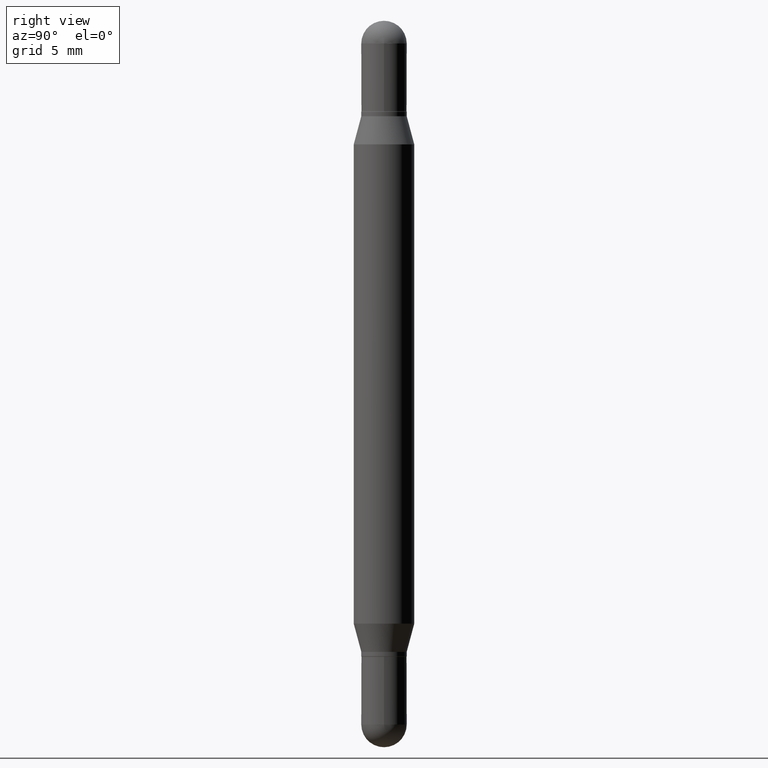
[diagram: clean part render]
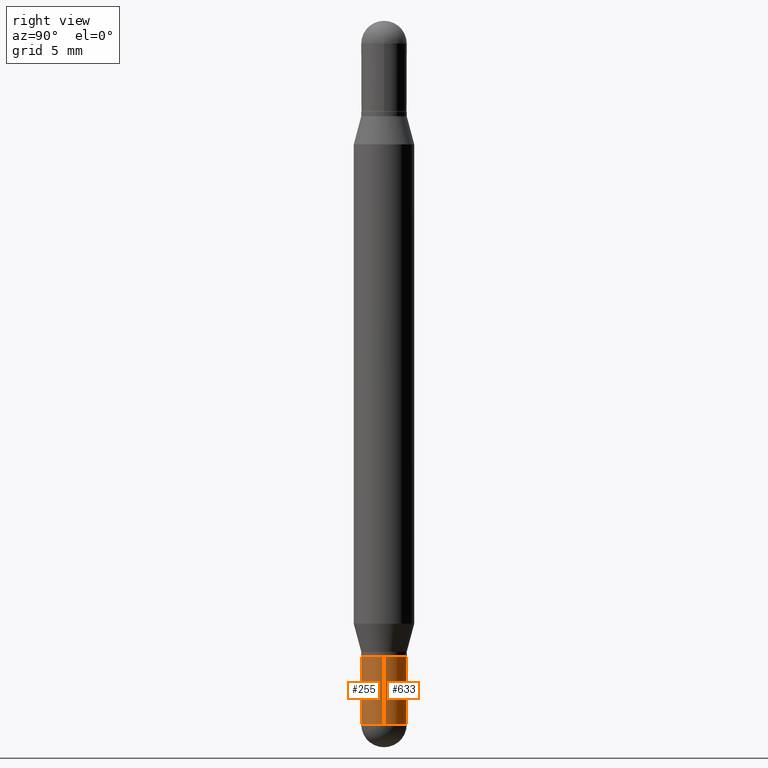
[diagram: same view with one multi-face feature highlighted, each face labeled with its STEP entity id]
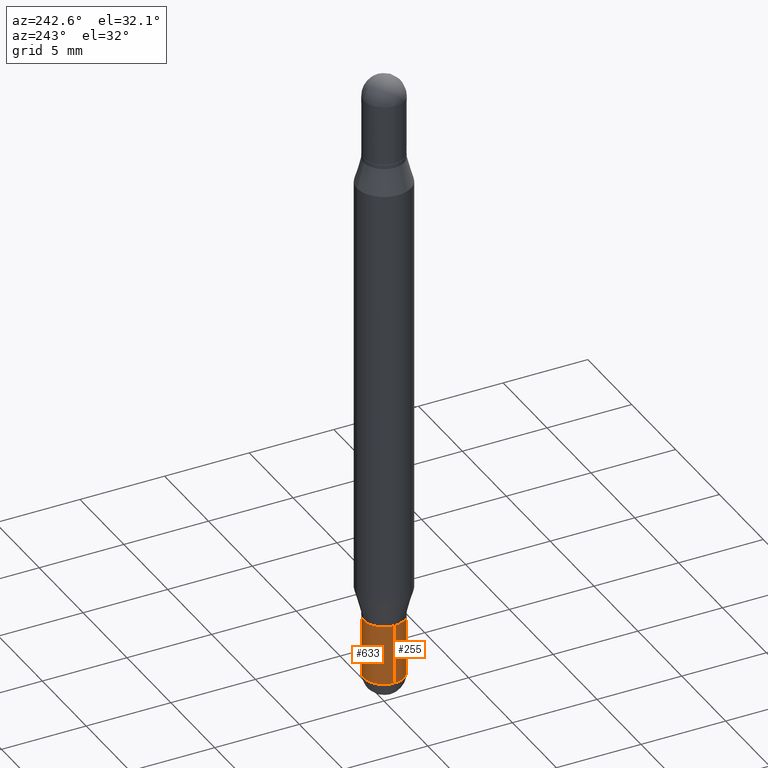
[diagram: same view with one multi-face feature highlighted, each face labeled with its STEP entity id]
A machine part, right view. The highlighted faces form ONE feature: a constant-radius fillet chain: 2 tangent blend faces with common blend radius 1.1913 mm. The faces share edges in the B-rep.
A second angle (auxiliary view) of the same feature is appended — it is thin or edge-on in the first view.
Their STEP definitions:
[1] entity #633 (Cylinder):
#17 = VECTOR ( 'NONE', #774, 39.37007874015748143 ) ;
#86 = CARTESIAN_POINT ( 'NONE',  ( 0.04689999999999999725, -3.275009495834859024E-16, 2.286926907848294038E-30 ) ) ;
#87 = AXIS2_PLACEMENT_3D ( 'NONE', #154, #1088, #316 ) ;
#93 = CARTESIAN_POINT ( 'NONE',  ( -0.04689999999999999725, 3.332445430714869676E-16, -2.306980557329550952E-30 ) ) ;
#123 = AXIS2_PLACEMENT_3D ( 'NONE', #1025, #613, #441 ) ;
#135 = ORIENTED_EDGE ( 'NONE', *, *, #504, .T. ) ;
#146 = EDGE_CURVE ( 'NONE', #756, #773, #436, .T. ) ;
#154 = CARTESIAN_POINT ( 'NONE',  ( 3.553510722267622201E-29, -5.073471533472974042E-15, -1.453099999999999836 ) ) ;
#176 = CARTESIAN_POINT ( 'NONE',  ( 0.000000000000000000, 0.000000000000000000, 0.000000000000000000 ) ) ;
#192 = EDGE_LOOP ( 'NONE', ( #621, #423, #250, #309, #135 ) ) ;
#237 = DIRECTION ( 'NONE',  ( -2.445468806185136597E-29, 3.491481338843145583E-15, 1.000000000000000000 ) ) ;
#250 = ORIENTED_EDGE ( 'NONE', *, *, #919, .F. ) ;
#285 = CIRCLE ( 'NONE', #1115, 0.04689999999999999725 ) ;
#305 = CARTESIAN_POINT ( 'NONE',  ( -0.04689999999999999725, -4.495648722615525747E-15, -1.313000000000000167 ) ) ;
#309 = ORIENTED_EDGE ( 'NONE', *, *, #708, .F. ) ;
#316 = DIRECTION ( 'NONE',  ( 1.000000000000000000, -6.982962677686277755E-15, 0.000000000000000000 ) ) ;
#354 = DIRECTION ( 'NONE',  ( -2.445468806185136877E-29, 3.491481338843145188E-15, 1.000000000000000000 ) ) ;
#396 = CIRCLE ( 'NONE', #123, 0.04689999999999999725 ) ;
#407 = CARTESIAN_POINT ( 'NONE',  ( 0.04689999999999999725, -5.156394215270499012E-15, -1.453099999999999836 ) ) ;
#423 = ORIENTED_EDGE ( 'NONE', *, *, #146, .T. ) ;
#436 = LINE ( 'NONE', #93, #17 ) ;
#441 = DIRECTION ( 'NONE',  ( 1.000000000000000000, -6.982962677686277755E-15, 0.000000000000000000 ) ) ;
#451 = CYLINDRICAL_SURFACE ( 'NONE', #764, 0.04689999999999999725 ) ;
#504 = EDGE_CURVE ( 'NONE', #957, #1100, #692, .T. ) ;
#613 = DIRECTION ( 'NONE',  ( -2.445468806185136597E-29, 3.491481338843145583E-15, 1.000000000000000000 ) ) ;
#619 = DIRECTION ( 'NONE',  ( -2.445468806185136597E-29, 3.491481338843145583E-15, 1.000000000000000000 ) ) ;
#621 = ORIENTED_EDGE ( 'NONE', *, *, #1108, .T. ) ;
#633 = ADVANCED_FACE ( 'NONE', ( #958 ), #451, .T. ) ;
#692 = CIRCLE ( 'NONE', #87, 0.04689999999999999725 ) ;
#708 = EDGE_CURVE ( 'NONE', #957, #1008, #853, .T. ) ;
#729 = VECTOR ( 'NONE', #354, 39.37007874015748143 ) ;
#750 = CARTESIAN_POINT ( 'NONE',  ( 3.210900542521084585E-29, -4.584314997901050598E-15, -1.313000000000000167 ) ) ;
#756 = VERTEX_POINT ( 'NONE', #892 ) ;
#764 = AXIS2_PLACEMENT_3D ( 'NONE', #176, #619, #1027 ) ;
#773 = VERTEX_POINT ( 'NONE', #305 ) ;
#774 = DIRECTION ( 'NONE',  ( -2.445468806185136877E-29, 3.491481338843145188E-15, 1.000000000000000000 ) ) ;
#853 = LINE ( 'NONE', #86, #729 ) ;
#892 = CARTESIAN_POINT ( 'NONE',  ( -0.04689999999999999725, -4.495648722615525747E-15, -1.453099999999999836 ) ) ;
#908 = DIRECTION ( 'NONE',  ( 1.000000000000000000, -6.982962677686277755E-15, 0.000000000000000000 ) ) ;
#919 = EDGE_CURVE ( 'NONE', #1008, #773, #285, .T. ) ;
#944 = CARTESIAN_POINT ( 'NONE',  ( 3.332445430715229101E-16, 0.04689999999999499430, -1.453100000000000058 ) ) ;
#957 = VERTEX_POINT ( 'NONE', #407 ) ;
#958 = FACE_OUTER_BOUND ( 'NONE', #192, .T. ) ;
#1008 = VERTEX_POINT ( 'NONE', #1015 ) ;
#1015 = CARTESIAN_POINT ( 'NONE',  ( 0.04689999999999999725, -4.911815947484537290E-15, -1.313000000000000167 ) ) ;
#1025 = CARTESIAN_POINT ( 'NONE',  ( 3.553510722267622201E-29, -5.073471533472974042E-15, -1.453099999999999836 ) ) ;
#1027 = DIRECTION ( 'NONE',  ( 1.000000000000000000, -6.982962677686266711E-15, 4.876176775795936353E-29 ) ) ;
#1088 = DIRECTION ( 'NONE',  ( -2.445468806185136597E-29, 3.491481338843145583E-15, 1.000000000000000000 ) ) ;
#1100 = VERTEX_POINT ( 'NONE', #944 ) ;
#1108 = EDGE_CURVE ( 'NONE', #1100, #756, #396, .T. ) ;
#1115 = AXIS2_PLACEMENT_3D ( 'NONE', #750, #237, #908 ) ;
[2] entity #255 (Cylinder):
#17 = VECTOR ( 'NONE', #774, 39.37007874015748143 ) ;
#36 = CARTESIAN_POINT ( 'NONE',  ( -3.275009495834508474E-16, -0.04690000000000513897, -1.453099999999999614 ) ) ;
#46 = ORIENTED_EDGE ( 'NONE', *, *, #89, .T. ) ;
#71 = CIRCLE ( 'NONE', #304, 0.04689999999999999725 ) ;
#86 = CARTESIAN_POINT ( 'NONE',  ( 0.04689999999999999725, -3.275009495834859024E-16, 2.286926907848294038E-30 ) ) ;
#89 = EDGE_CURVE ( 'NONE', #756, #852, #247, .T. ) ;
#93 = CARTESIAN_POINT ( 'NONE',  ( -0.04689999999999999725, 3.332445430714869676E-16, -2.306980557329550952E-30 ) ) ;
#111 = EDGE_LOOP ( 'NONE', ( #353, #46, #684, #315, #238 ) ) ;
#146 = EDGE_CURVE ( 'NONE', #756, #773, #436, .T. ) ;
#165 = DIRECTION ( 'NONE',  ( -2.445468806185136597E-29, 3.491481338843145583E-15, 1.000000000000000000 ) ) ;
#184 = DIRECTION ( 'NONE',  ( -2.445468806185136597E-29, 3.491481338843145583E-15, 1.000000000000000000 ) ) ;
#202 = DIRECTION ( 'NONE',  ( -2.445468806185136597E-29, 3.491481338843145583E-15, 1.000000000000000000 ) ) ;
#238 = ORIENTED_EDGE ( 'NONE', *, *, #1021, .F. ) ;
#247 = CIRCLE ( 'NONE', #550, 0.04689999999999999725 ) ;
#255 = ADVANCED_FACE ( 'NONE', ( #681 ), #523, .T. ) ;
#304 = AXIS2_PLACEMENT_3D ( 'NONE', #663, #1086, #1110 ) ;
#305 = CARTESIAN_POINT ( 'NONE',  ( -0.04689999999999999725, -4.495648722615525747E-15, -1.313000000000000167 ) ) ;
#315 = ORIENTED_EDGE ( 'NONE', *, *, #708, .T. ) ;
#353 = ORIENTED_EDGE ( 'NONE', *, *, #146, .F. ) ;
#354 = DIRECTION ( 'NONE',  ( -2.445468806185136877E-29, 3.491481338843145188E-15, 1.000000000000000000 ) ) ;
#360 = AXIS2_PLACEMENT_3D ( 'NONE', #996, #165, #506 ) ;
#407 = CARTESIAN_POINT ( 'NONE',  ( 0.04689999999999999725, -5.156394215270499012E-15, -1.453099999999999836 ) ) ;
#436 = LINE ( 'NONE', #93, #17 ) ;
#458 = CARTESIAN_POINT ( 'NONE',  ( 3.553510722267622201E-29, -5.073471533472974042E-15, -1.453099999999999836 ) ) ;
#488 = DIRECTION ( 'NONE',  ( 1.000000000000000000, -6.982962677686277755E-15, 0.000000000000000000 ) ) ;
#506 = DIRECTION ( 'NONE',  ( 1.000000000000000000, -6.982962677686277755E-15, 0.000000000000000000 ) ) ;
#523 = CYLINDRICAL_SURFACE ( 'NONE', #1033, 0.04689999999999999725 ) ;
#550 = AXIS2_PLACEMENT_3D ( 'NONE', #458, #202, #488 ) ;
#586 = CIRCLE ( 'NONE', #360, 0.04689999999999999725 ) ;
#663 = CARTESIAN_POINT ( 'NONE',  ( 3.553510722267622201E-29, -5.073471533472974042E-15, -1.453099999999999836 ) ) ;
#681 = FACE_OUTER_BOUND ( 'NONE', #111, .T. ) ;
#684 = ORIENTED_EDGE ( 'NONE', *, *, #1032, .T. ) ;
#708 = EDGE_CURVE ( 'NONE', #957, #1008, #853, .T. ) ;
#729 = VECTOR ( 'NONE', #354, 39.37007874015748143 ) ;
#756 = VERTEX_POINT ( 'NONE', #892 ) ;
#773 = VERTEX_POINT ( 'NONE', #305 ) ;
#774 = DIRECTION ( 'NONE',  ( -2.445468806185136877E-29, 3.491481338843145188E-15, 1.000000000000000000 ) ) ;
#852 = VERTEX_POINT ( 'NONE', #36 ) ;
#853 = LINE ( 'NONE', #86, #729 ) ;
#867 = DIRECTION ( 'NONE',  ( 1.000000000000000000, -6.982962677686266711E-15, 4.876176775795936353E-29 ) ) ;
#892 = CARTESIAN_POINT ( 'NONE',  ( -0.04689999999999999725, -4.495648722615525747E-15, -1.453099999999999836 ) ) ;
#954 = CARTESIAN_POINT ( 'NONE',  ( 0.000000000000000000, 0.000000000000000000, 0.000000000000000000 ) ) ;
#957 = VERTEX_POINT ( 'NONE', #407 ) ;
#996 = CARTESIAN_POINT ( 'NONE',  ( 3.210900542521084585E-29, -4.584314997901050598E-15, -1.313000000000000167 ) ) ;
#1008 = VERTEX_POINT ( 'NONE', #1015 ) ;
#1015 = CARTESIAN_POINT ( 'NONE',  ( 0.04689999999999999725, -4.911815947484537290E-15, -1.313000000000000167 ) ) ;
#1021 = EDGE_CURVE ( 'NONE', #773, #1008, #586, .T. ) ;
#1032 = EDGE_CURVE ( 'NONE', #852, #957, #71, .T. ) ;
#1033 = AXIS2_PLACEMENT_3D ( 'NONE', #954, #184, #867 ) ;
#1086 = DIRECTION ( 'NONE',  ( -2.445468806185136597E-29, 3.491481338843145583E-15, 1.000000000000000000 ) ) ;
#1110 = DIRECTION ( 'NONE',  ( 1.000000000000000000, -6.982962677686277755E-15, 0.000000000000000000 ) ) ;